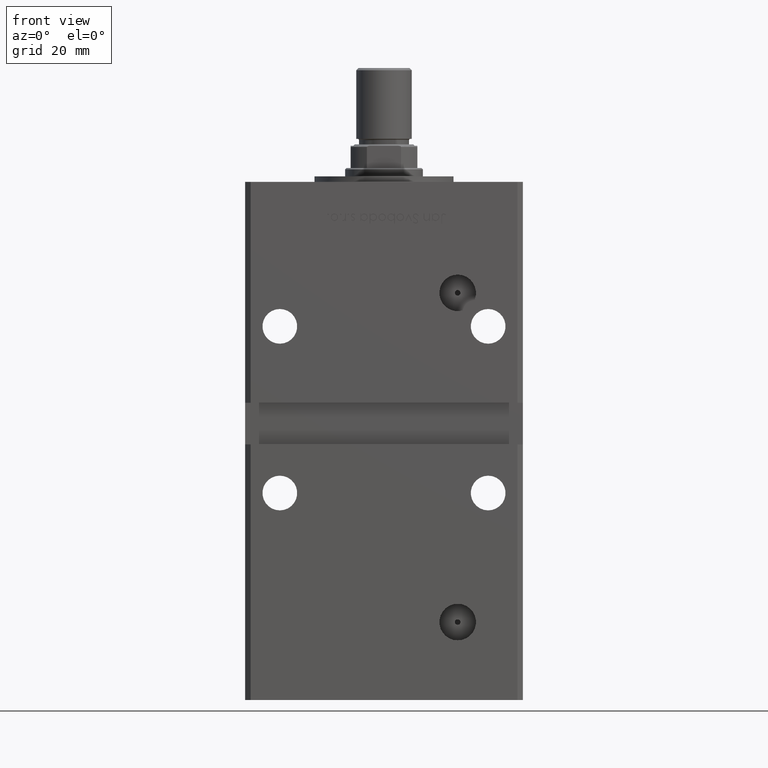
[diagram: clean part render]
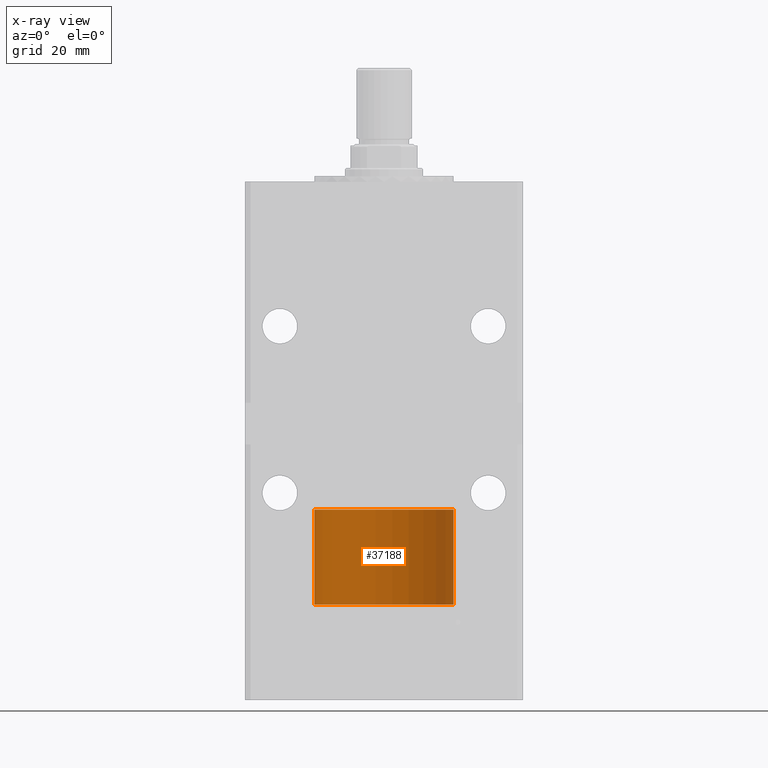
[diagram: x-ray — body ghosted, one internal face saturated and labeled with its STEP entity id]
A machine part, front view, then the same camera in x-ray: the body is ghosted and one INTERNAL B-rep face — a face not visible from any outside direction — is saturated and labeled: STEP entity #37188.
In plain terms, the highlighted cylindrical surface (partial cylindrical patch) has radius 25 mm, axis along (-0, -0, -1).
Its self-contained STEP definition (entity closure, byte-faithful):
#596 = VERTEX_POINT ( 'NONE', #30506 ) ;
#653 = DIRECTION ( 'NONE',  ( 0.000000000000000000, 0.000000000000000000, 1.000000000000000000 ) ) ;
#699 = DIRECTION ( 'NONE',  ( -0.000000000000000000, -0.000000000000000000, -1.000000000000000000 ) ) ;
#1230 = CARTESIAN_POINT ( 'NONE',  ( -25.00000000000000000, 0.000000000000000000, 34.25000000000000000 ) ) ;
#2343 = CARTESIAN_POINT ( 'NONE',  ( 25.00000000000000000, 3.061616997868383043E-15, 34.25000000000000000 ) ) ;
#2722 = VERTEX_POINT ( 'NONE', #37123 ) ;
#4913 = VERTEX_POINT ( 'NONE', #43421 ) ;
#5012 = CARTESIAN_POINT ( 'NONE',  ( 0.000000000000000000, 0.000000000000000000, 34.25000000000000000 ) ) ;
#6735 = ORIENTED_EDGE ( 'NONE', *, *, #24092, .F. ) ;
#7581 = EDGE_CURVE ( 'NONE', #596, #25478, #34079, .T. ) ;
#8542 = DIRECTION ( 'NONE',  ( 1.000000000000000000, 0.000000000000000000, 0.000000000000000000 ) ) ;
#9316 = EDGE_CURVE ( 'NONE', #4913, #2722, #47105, .T. ) ;
#13397 = AXIS2_PLACEMENT_3D ( 'NONE', #36981, #653, #8542 ) ;
#16675 = CYLINDRICAL_SURFACE ( 'NONE', #29995, 25.00000000000000000 ) ;
#19737 = ORIENTED_EDGE ( 'NONE', *, *, #7581, .F. ) ;
#19965 = EDGE_CURVE ( 'NONE', #596, #4913, #20602, .T. ) ;
#20602 = LINE ( 'NONE', #2343, #45552 ) ;
#21121 = DIRECTION ( 'NONE',  ( -0.000000000000000000, -0.000000000000000000, -1.000000000000000000 ) ) ;
#22109 = ORIENTED_EDGE ( 'NONE', *, *, #9316, .T. ) ;
#24092 = EDGE_CURVE ( 'NONE', #25478, #2722, #25364, .T. ) ;
#24971 = DIRECTION ( 'NONE',  ( 1.000000000000000000, 0.000000000000000000, 0.000000000000000000 ) ) ;
#25364 = LINE ( 'NONE', #1230, #33606 ) ;
#25478 = VERTEX_POINT ( 'NONE', #37427 ) ;
#25678 = ORIENTED_EDGE ( 'NONE', *, *, #19965, .T. ) ;
#29140 = DIRECTION ( 'NONE',  ( -1.000000000000000000, 0.000000000000000000, 0.000000000000000000 ) ) ;
#29995 = AXIS2_PLACEMENT_3D ( 'NONE', #5012, #33468, #29140 ) ;
#30506 = CARTESIAN_POINT ( 'NONE',  ( 25.00000000000000000, 3.061616997868383043E-15, 34.25000000000000000 ) ) ;
#32350 = EDGE_LOOP ( 'NONE', ( #19737, #25678, #22109, #6735 ) ) ;
#33468 = DIRECTION ( 'NONE',  ( -0.000000000000000000, -0.000000000000000000, -1.000000000000000000 ) ) ;
#33606 = VECTOR ( 'NONE', #699, 1000.000000000000000 ) ;
#34079 = CIRCLE ( 'NONE', #47917, 25.00000000000000000 ) ;
#36981 = CARTESIAN_POINT ( 'NONE',  ( 0.000000000000000000, 0.000000000000000000, 0.000000000000000000 ) ) ;
#37123 = CARTESIAN_POINT ( 'NONE',  ( -25.00000000000000000, 0.000000000000000000, 0.000000000000000000 ) ) ;
#37188 = ADVANCED_FACE ( 'NONE', ( #41318 ), #16675, .T. ) ;
#37427 = CARTESIAN_POINT ( 'NONE',  ( -25.00000000000000000, 0.000000000000000000, 34.25000000000000000 ) ) ;
#37692 = DIRECTION ( 'NONE',  ( 0.000000000000000000, 0.000000000000000000, 1.000000000000000000 ) ) ;
#41318 = FACE_OUTER_BOUND ( 'NONE', #32350, .T. ) ;
#43421 = CARTESIAN_POINT ( 'NONE',  ( 25.00000000000000000, 3.061616997868383043E-15, 0.000000000000000000 ) ) ;
#45552 = VECTOR ( 'NONE', #21121, 1000.000000000000000 ) ;
#47105 = CIRCLE ( 'NONE', #13397, 25.00000000000000000 ) ;
#47917 = AXIS2_PLACEMENT_3D ( 'NONE', #50965, #37692, #24971 ) ;
#50965 = CARTESIAN_POINT ( 'NONE',  ( 0.000000000000000000, 0.000000000000000000, 34.25000000000000000 ) ) ;